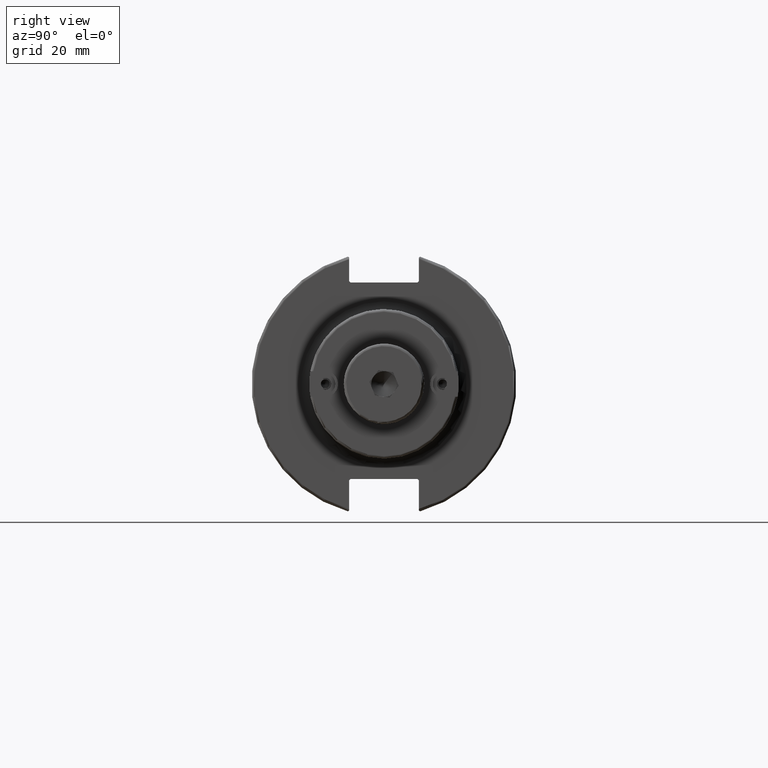
[diagram: clean part render]
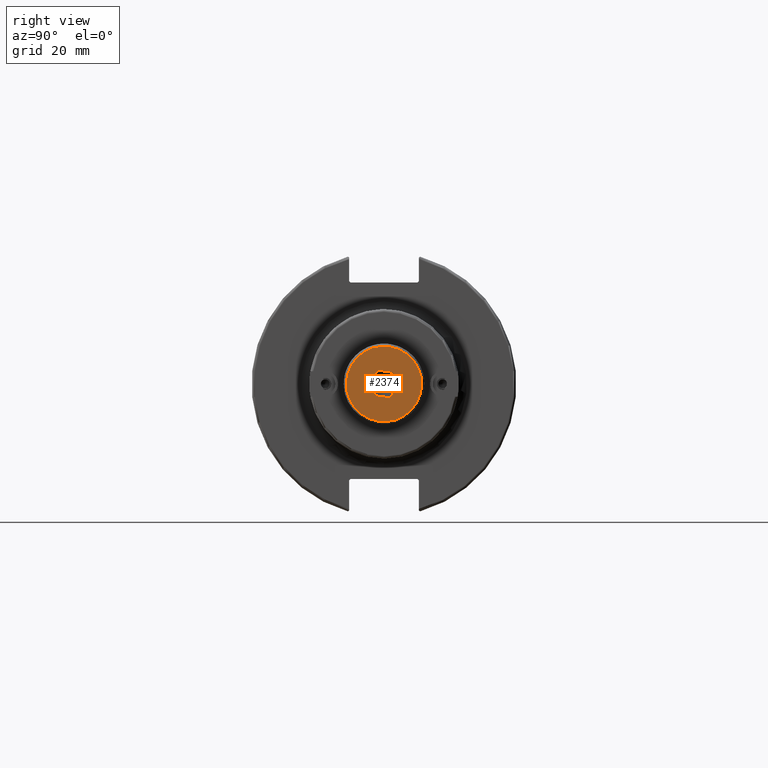
[diagram: same view with one face highlighted and labeled with its STEP entity id]
A machine part, right view. The second image highlights one B-rep face of the part: STEP entity #2374.
In plain terms, the highlighted planar face has unit normal (1, 0, -0).
Its self-contained STEP definition (entity closure, byte-faithful):
#97=FACE_BOUND('',#538,.T.);
#203=PLANE('',#2721);
#376=FACE_OUTER_BOUND('',#537,.T.);
#537=EDGE_LOOP('',(#2214));
#538=EDGE_LOOP('',(#2215,#2216,#2217,#2218,#2219,#2220));
#680=LINE('',#4573,#836);
#683=LINE('',#4578,#839);
#685=LINE('',#4582,#841);
#687=LINE('',#4586,#843);
#689=LINE('',#4590,#845);
#691=LINE('',#4593,#847);
#836=VECTOR('',#3339,10.);
#839=VECTOR('',#3344,10.);
#841=VECTOR('',#3348,10.);
#843=VECTOR('',#3352,10.);
#845=VECTOR('',#3356,10.);
#847=VECTOR('',#3360,10.);
#974=CIRCLE('',#2720,14.);
#1183=VERTEX_POINT('',#4571);
#1184=VERTEX_POINT('',#4572);
#1185=VERTEX_POINT('',#4577);
#1186=VERTEX_POINT('',#4581);
#1187=VERTEX_POINT('',#4585);
#1188=VERTEX_POINT('',#4589);
#1200=VERTEX_POINT('',#4629);
#1511=EDGE_CURVE('',#1183,#1184,#680,.T.);
#1514=EDGE_CURVE('',#1185,#1183,#683,.T.);
#1516=EDGE_CURVE('',#1186,#1185,#685,.T.);
#1518=EDGE_CURVE('',#1187,#1186,#687,.T.);
#1520=EDGE_CURVE('',#1188,#1187,#689,.T.);
#1522=EDGE_CURVE('',#1184,#1188,#691,.T.);
#1540=EDGE_CURVE('',#1200,#1200,#974,.T.);
#2214=ORIENTED_EDGE('',*,*,#1540,.F.);
#2215=ORIENTED_EDGE('',*,*,#1511,.T.);
#2216=ORIENTED_EDGE('',*,*,#1522,.T.);
#2217=ORIENTED_EDGE('',*,*,#1520,.T.);
#2218=ORIENTED_EDGE('',*,*,#1518,.T.);
#2219=ORIENTED_EDGE('',*,*,#1516,.T.);
#2220=ORIENTED_EDGE('',*,*,#1514,.T.);
#2374=ADVANCED_FACE('',(#376,#97),#203,.T.);
#2720=AXIS2_PLACEMENT_3D('',#4631,#3408,#3409);
#2721=AXIS2_PLACEMENT_3D('',#4632,#3410,#3411);
#3339=DIRECTION('',(0.,0.866025403784439,0.499999999999999));
#3344=DIRECTION('',(0.,0.866025403784438,-0.500000000000001));
#3348=DIRECTION('',(0.,-7.06600462188186E-16,-1.));
#3352=DIRECTION('',(0.,-0.866025403784439,-0.5));
#3356=DIRECTION('',(0.,-0.866025403784438,0.500000000000001));
#3360=DIRECTION('',(0.,1.21131507803689E-15,1.));
#3408=DIRECTION('center_axis',(1.,0.,0.));
#3409=DIRECTION('ref_axis',(0.,-1.,1.83697019872103E-16));
#3410=DIRECTION('center_axis',(-1.,0.,0.));
#3411=DIRECTION('ref_axis',(0.,0.,1.));
#4571=CARTESIAN_POINT('',(0.,-8.82348337528734E-15,-5.49926131403118));
#4572=CARTESIAN_POINT('',(0.,4.76249999999999,-2.7496306570156));
#4573=CARTESIAN_POINT('',(0.,6.815625,-1.56425838558565));
#4577=CARTESIAN_POINT('',(0.,-4.7625,-2.74963065701559));
#4578=CARTESIAN_POINT('',(0.,2.05312499999999,-6.68463358546114));
#4581=CARTESIAN_POINT('',(0.,-4.7625,2.7496306570156));
#4582=CARTESIAN_POINT('',(0.,-4.7625,1.3748153285078));
#4585=CARTESIAN_POINT('',(0.,-6.68923485257748E-16,5.49926131403119));
#4586=CARTESIAN_POINT('',(0.,4.434375,8.05944891396893));
#4589=CARTESIAN_POINT('',(0.,4.7625,2.74963065701559));
#4590=CARTESIAN_POINT('',(0.,9.196875,0.189443057077837));
#4593=CARTESIAN_POINT('',(0.,4.7625,-1.37481532850779));
#4629=CARTESIAN_POINT('',(0.,-1.71450551880629E-15,14.));
#4631=CARTESIAN_POINT('Origin',(0.,0.,0.));
#4632=CARTESIAN_POINT('Origin',(0.,15.,0.));